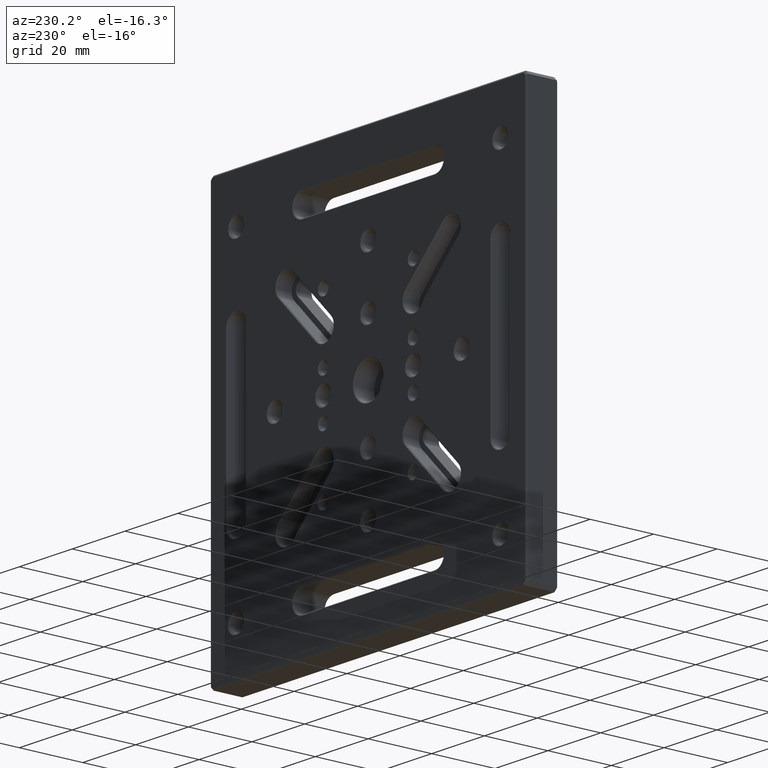
[diagram: clean part render]
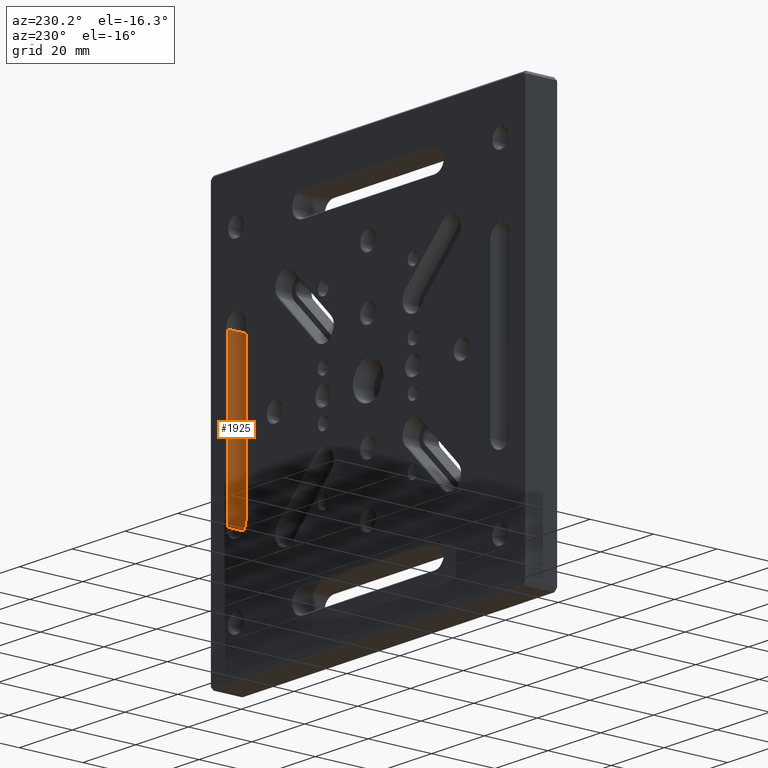
[diagram: same view with one face highlighted and labeled with its STEP entity id]
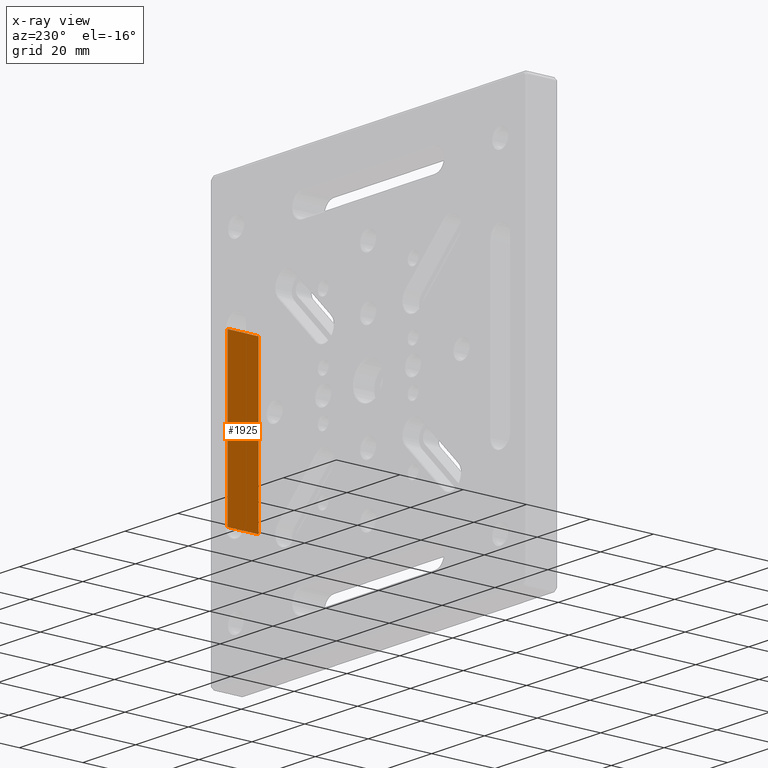
[diagram: x-ray of the same camera — body ghosted, the highlighted face saturated]
A machine part, auxiliary view. The second image highlights one B-rep face of the part: STEP entity #1925.
The next image is the same camera in x-ray: the body ghosted, the highlighted face saturated — about 0% of this face is hidden behind the body in this view.
In plain terms, the highlighted planar face has unit normal (1, 0, -0).
Its self-contained STEP definition (entity closure, byte-faithful):
#9 = EDGE_CURVE ( 'NONE', #2142, #2267, #1288, .T. ) ;
#76 = LINE ( 'NONE', #1085, #3085 ) ;
#137 = VECTOR ( 'NONE', #1851, 1000.000000000000000 ) ;
#170 = VECTOR ( 'NONE', #1999, 1000.000000000000000 ) ;
#183 = ORIENTED_EDGE ( 'NONE', *, *, #2376, .T. ) ;
#285 = CARTESIAN_POINT ( 'NONE',  ( 53.50000000000000000, -18.00000000000000355, 24.99999999999999645 ) ) ;
#321 = CARTESIAN_POINT ( 'NONE',  ( 53.50000000000000000, 9.750000000000001776, 24.99999999999999645 ) ) ;
#492 = CARTESIAN_POINT ( 'NONE',  ( 53.49999999999999289, 0.000000000000000000, -1.484923295436146557E-14 ) ) ;
#640 = EDGE_CURVE ( 'NONE', #3013, #2142, #1237, .T. ) ;
#705 = CARTESIAN_POINT ( 'NONE',  ( 53.49999999999998579, -18.00000000000000355, -25.00000000000001066 ) ) ;
#715 = ORIENTED_EDGE ( 'NONE', *, *, #9, .F. ) ;
#1048 = VECTOR ( 'NONE', #1230, 1000.000000000000000 ) ;
#1085 = CARTESIAN_POINT ( 'NONE',  ( 53.49999999999998579, 9.750000000000001776, -25.00000000000001066 ) ) ;
#1230 = DIRECTION ( 'NONE',  ( -0.000000000000000000, 1.000000000000000000, -0.000000000000000000 ) ) ;
#1237 = LINE ( 'NONE', #492, #137 ) ;
#1270 = CARTESIAN_POINT ( 'NONE',  ( 53.49999999999998579, -18.00000000000000355, -25.00000000000001066 ) ) ;
#1288 = LINE ( 'NONE', #1270, #1048 ) ;
#1338 = PLANE ( 'NONE',  #1859 ) ;
#1356 = FACE_OUTER_BOUND ( 'NONE', #4216, .T. ) ;
#1534 = VERTEX_POINT ( 'NONE', #321 ) ;
#1665 = LINE ( 'NONE', #285, #170 ) ;
#1851 = DIRECTION ( 'NONE',  ( -2.775557561562891351E-16, 0.000000000000000000, -1.000000000000000000 ) ) ;
#1859 = AXIS2_PLACEMENT_3D ( 'NONE', #705, #2334, #2046 ) ;
#1925 = ADVANCED_FACE ( 'NONE', ( #1356 ), #1338, .F. ) ;
#1999 = DIRECTION ( 'NONE',  ( -0.000000000000000000, 1.000000000000000000, -0.000000000000000000 ) ) ;
#2046 = DIRECTION ( 'NONE',  ( -2.775557561562891351E-16, 0.000000000000000000, -1.000000000000000000 ) ) ;
#2142 = VERTEX_POINT ( 'NONE', #3806 ) ;
#2181 = ORIENTED_EDGE ( 'NONE', *, *, #640, .F. ) ;
#2267 = VERTEX_POINT ( 'NONE', #2978 ) ;
#2334 = DIRECTION ( 'NONE',  ( 1.000000000000000000, 0.000000000000000000, -2.775557561562891351E-16 ) ) ;
#2376 = EDGE_CURVE ( 'NONE', #3013, #1534, #1665, .T. ) ;
#2475 = DIRECTION ( 'NONE',  ( -2.775557561562891351E-16, 0.000000000000000000, -1.000000000000000000 ) ) ;
#2978 = CARTESIAN_POINT ( 'NONE',  ( 53.49999999999998579, 9.750000000000001776, -25.00000000000001066 ) ) ;
#3013 = VERTEX_POINT ( 'NONE', #3549 ) ;
#3019 = ORIENTED_EDGE ( 'NONE', *, *, #4150, .T. ) ;
#3085 = VECTOR ( 'NONE', #2475, 1000.000000000000000 ) ;
#3549 = CARTESIAN_POINT ( 'NONE',  ( 53.50000000000000000, 0.000000000000000000, 24.99999999999999645 ) ) ;
#3806 = CARTESIAN_POINT ( 'NONE',  ( 53.49999999999998579, 0.000000000000000000, -25.00000000000001066 ) ) ;
#4150 = EDGE_CURVE ( 'NONE', #1534, #2267, #76, .T. ) ;
#4216 = EDGE_LOOP ( 'NONE', ( #183, #3019, #715, #2181 ) ) ;